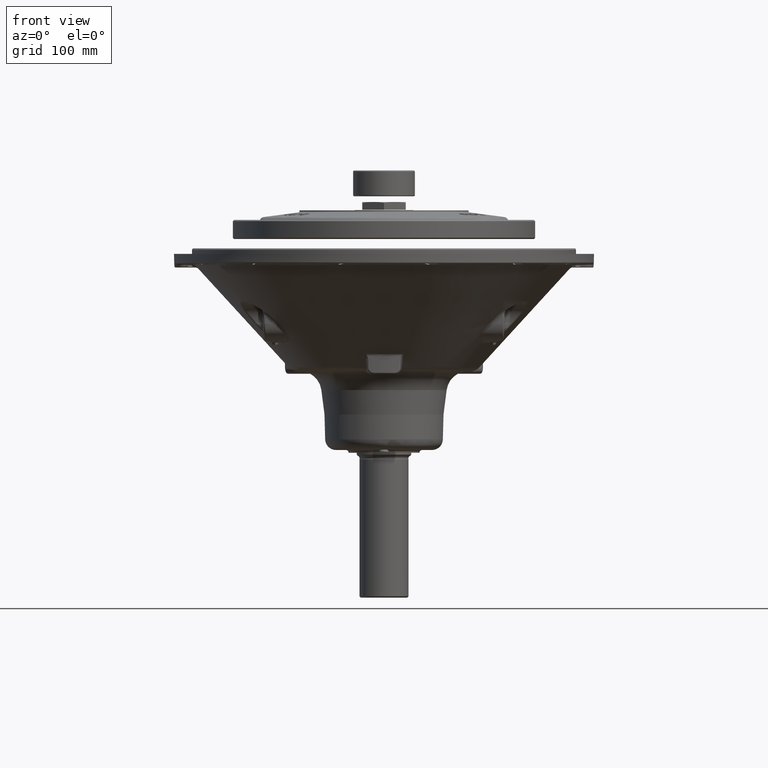
[diagram: clean part render]
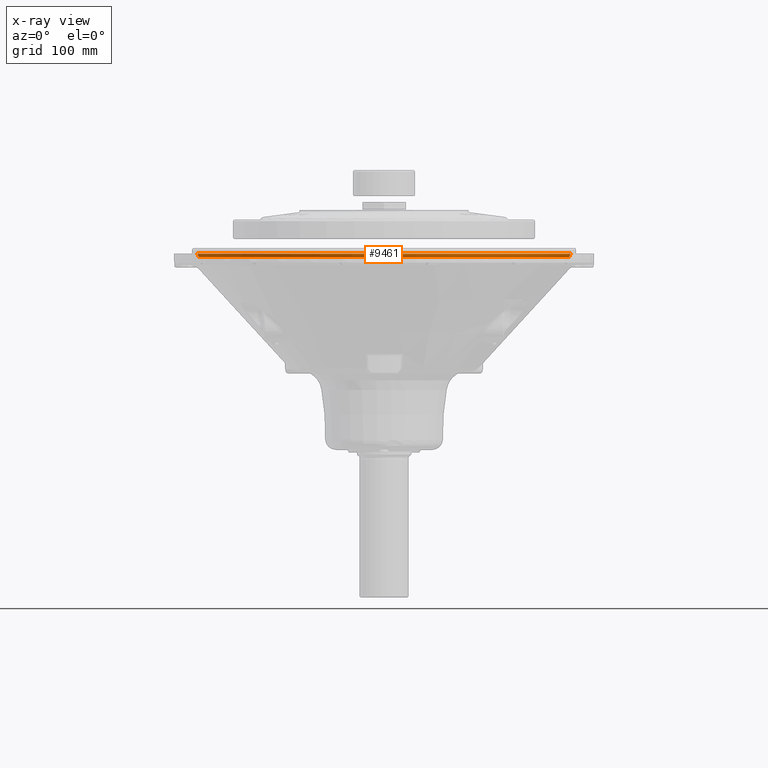
[diagram: x-ray — body ghosted, one internal face saturated and labeled with its STEP entity id]
A machine part, front view, then the same camera in x-ray: the body is ghosted and one INTERNAL B-rep face — a face not visible from any outside direction — is saturated and labeled: STEP entity #9461.
In plain terms, the highlighted toroidal blend (fillet) surface has major radius 210.976 mm and minor (blend) radius 6.35 mm.
Its self-contained STEP definition (entity closure, byte-faithful):
#4331 = CIRCLE ( 'NONE', #20048, 217.3242452740178100 ) ;
#4360 = CIRCLE ( 'NONE', #20000, 6.350000000000001400 ) ;
#4363 = CIRCLE ( 'NONE', #19998, 215.6581323491673200 ) ;
#4364 = CIRCLE ( 'NONE', #19993, 6.349999999999994300 ) ;
#9461 = ADVANCED_FACE ( 'NONE', ( #56939 ), #56945, .F. ) ;
#14028 = ORIENTED_EDGE ( 'NONE', *, *, #64957, .F. ) ;
#15345 = DIRECTION ( 'NONE',  ( 1.000000000000000000, 8.326672684688667900E-017, 2.775557561562890700E-017 ) ) ;
#15350 = DIRECTION ( 'NONE',  ( -2.775557561562890100E-017, -5.551115123125780200E-017, 1.000000000000000000 ) ) ;
#15351 = CARTESIAN_POINT ( 'NONE',  ( 0.0000000000000000000, 6.938893903907228400E-015, 0.2817771635299226600 ) ) ;
#19993 = AXIS2_PLACEMENT_3D ( 'NONE', #58383, #58373, #58374 ) ;
#19998 = AXIS2_PLACEMENT_3D ( 'NONE', #58464, #58332, #58343 ) ;
#20000 = AXIS2_PLACEMENT_3D ( 'NONE', #58471, #58462, #58333 ) ;
#20048 = AXIS2_PLACEMENT_3D ( 'NONE', #58847, #58873, #58875 ) ;
#22171 = VERTEX_POINT ( 'NONE', #26234 ) ;
#22181 = VERTEX_POINT ( 'NONE', #26096 ) ;
#22182 = VERTEX_POINT ( 'NONE', #26158 ) ;
#22245 = VERTEX_POINT ( 'NONE', #26464 ) ;
#26096 = CARTESIAN_POINT ( 'NONE',  ( -215.6581323491672000, 1.554859035368789000E-014, -4.008220654829522700 ) ) ;
#26158 = CARTESIAN_POINT ( 'NONE',  ( 215.6581323491672900, 3.530438155839592200E-014, -4.008220654829516500 ) ) ;
#26234 = CARTESIAN_POINT ( 'NONE',  ( 217.3242452740178100, 2.504399973695011800E-014, 0.1155535417749933600 ) ) ;
#26464 = CARTESIAN_POINT ( 'NONE',  ( -217.3242452740178100, 1.546678673526926800E-014, 0.1155535417749873300 ) ) ;
#41808 = EDGE_LOOP ( 'NONE', ( #48173, #48253, #48252, #14028 ) ) ;
#48173 = ORIENTED_EDGE ( 'NONE', *, *, #64956, .F. ) ;
#48252 = ORIENTED_EDGE ( 'NONE', *, *, #64921, .T. ) ;
#48253 = ORIENTED_EDGE ( 'NONE', *, *, #64954, .T. ) ;
#53361 = AXIS2_PLACEMENT_3D ( 'NONE', #15351, #15350, #15345 ) ;
#56939 = FACE_OUTER_BOUND ( 'NONE', #41808, .T. ) ;
#56945 = TOROIDAL_SURFACE ( 'NONE', #53361, 210.9764212604228800, 6.350000000000001400 ) ;
#58332 = DIRECTION ( 'NONE',  ( -2.775557561562890100E-017, -5.551115123125780200E-017, 1.000000000000000000 ) ) ;
#58333 = DIRECTION ( 'NONE',  ( 0.0000000000000000000, -5.551115123125801200E-017, 1.000000000000000000 ) ) ;
#58343 = DIRECTION ( 'NONE',  ( 1.000000000000000000, 8.326672684688667900E-017, 0.0000000000000000000 ) ) ;
#58373 = DIRECTION ( 'NONE',  ( 8.326672684688667900E-017, -1.000000000000000000, -5.551115123125780200E-017 ) ) ;
#58374 = DIRECTION ( 'NONE',  ( 1.000000000000000000, 8.326672684688686400E-017, 0.0000000000000000000 ) ) ;
#58383 = CARTESIAN_POINT ( 'NONE',  ( 210.9764212604230200, 2.450620994413257000E-014, 0.2817771635299226600 ) ) ;
#58462 = DIRECTION ( 'NONE',  ( 3.919795306784870300E-017, 1.000000000000000000, 5.551115123125780200E-017 ) ) ;
#58464 = CARTESIAN_POINT ( 'NONE',  ( -2.775557561562891400E-014, 1.734723475976807100E-014, -4.008220654829516500 ) ) ;
#58471 = CARTESIAN_POINT ( 'NONE',  ( -210.9764212604230200, 1.520873776289596700E-014, 0.2817771635299226600 ) ) ;
#58847 = CARTESIAN_POINT ( 'NONE',  ( 0.0000000000000000000, -1.734723475976807100E-015, 0.1155535417749903300 ) ) ;
#58873 = DIRECTION ( 'NONE',  ( -2.775557561562890100E-017, -5.551115123125780200E-017, 1.000000000000000000 ) ) ;
#58875 = DIRECTION ( 'NONE',  ( 1.000000000000000000, 8.326672684688669100E-017, 0.0000000000000000000 ) ) ;
#64921 = EDGE_CURVE ( 'NONE', #22245, #22171, #4331, .T. ) ;
#64954 = EDGE_CURVE ( 'NONE', #22181, #22245, #4360, .T. ) ;
#64956 = EDGE_CURVE ( 'NONE', #22181, #22182, #4363, .T. ) ;
#64957 = EDGE_CURVE ( 'NONE', #22182, #22171, #4364, .T. ) ;